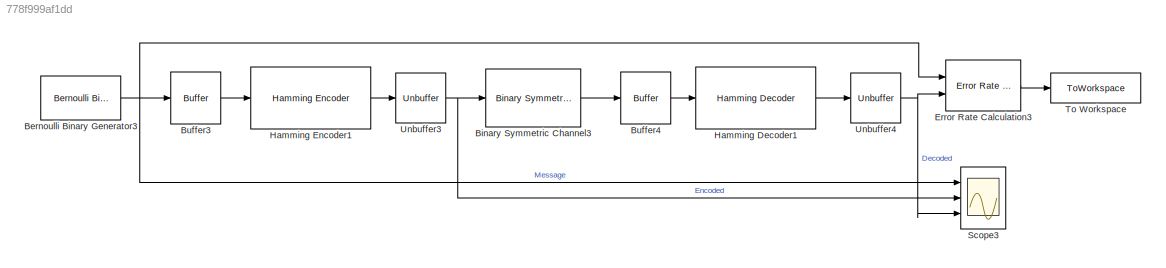
MODEL slx_778f999af1dd
KIND model
CONFIG AbsTol = auto
CONFIG EnableMultiTasking = off
CONFIG FixedStep = auto
CONFIG MaxStep = auto
CONFIG MinStep = auto
CONFIG RelTol = 1e-3
CONFIG SampleTimeConstraint = Unconstrained
CONFIG SolverName = VariableStepAuto
CONFIG StartTime = 0.0
CONFIG StopTime = 100000
BLOCK [Reference] Bernoulli Binary Generator3  REF=commrandsrc3/Bernoulli Binary
Generator
  Ports = [0, 1]
  SourceBlock = commrandsrc3/Bernoulli Binary\nGenerator
  SourceProductBaseCode = CM
  SourceType = Bernoulli Binary Generator
BLOCK [Reference] Binary Symmetric Channel3  REF=commchan3/Binary Symmetric
Channel
  Ports = [1, 1]
  SourceBlock = commchan3/Binary Symmetric\nChannel
  SourceProductBaseCode = CM
  SourceType = Binary Symmetric Channel
BLOCK [Buffer] Buffer3
  N = 2^M-1-M
  OutputFrames = off
BLOCK [Buffer] Buffer4
  N = 2^M-1
  OutputFrames = off
BLOCK [Reference] Error Rate Calculation3  REF=commsink2/Error Rate
Calculation
  Ports = [2, 1]
  SourceBlock = commsink2/Error Rate\nCalculation
  SourceProductBaseCode = CM
  SourceType = Error Rate Calculation
BLOCK [Reference] Hamming Decoder1  REF=commblkcod2/Hamming Decoder
  Ports = [1, 1]
  SourceBlock = commblkcod2/Hamming Decoder
  SourceProductBaseCode = CM
  SourceType = Hamming Decoder
BLOCK [Reference] Hamming Encoder1  REF=commblkcod2/Hamming Encoder
  Ports = [1, 1]
  SourceBlock = commblkcod2/Hamming Encoder
  SourceProductBaseCode = CM
  SourceType = Hamming Encoder
BLOCK [Scope] Scope3
  Floating = off
  NumInputPorts = 3
  Ports = [3]
  ScopeSpecificationString = Simulink.scopes.TimeScopeBlockCfg('CurrentConfiguration', extmgr.ConfigurationSet(extmgr.Configuration('Core','General UI',true),extmgr.Configuration('Core','Source UI',true),extmgr.Configuration('Sources','WiredSimulink',true),extmgr.Configuration('Visuals','Time Domain',true,'SerializedDisplays',{struct('MinYLimReal','-0.125','MaxYLimReal','1.125','YLabelReal','','MinYLimMag','0.00000','MaxYLimM...<+2763ch>
BLOCK [ToWorkspace] To Workspace
  FixptAsFi = on
  MaxDataPoints = 1
  Ports = [1]
  SampleTime = -1
  VariableName = ErrorStat
BLOCK [Unbuffer] Unbuffer3
  Ports = [1, 1]
BLOCK [Unbuffer] Unbuffer4
  Ports = [1, 1]
NET Bernoulli Binary Generator3:1 -> Buffer3:1, Error Rate Calculation3:1, Scope3:1
LINE Binary Symmetric Channel3:1 -> Buffer4:1
LINE Buffer3:1 -> Hamming Encoder1:1
LINE Buffer4:1 -> Hamming Decoder1:1
LINE Error Rate Calculation3:1 -> To Workspace:1
LINE Hamming Decoder1:1 -> Unbuffer4:1
LINE Hamming Encoder1:1 -> Unbuffer3:1
NET Unbuffer3:1 -> Binary Symmetric Channel3:1, Scope3:2
NET Unbuffer4:1 -> Error Rate Calculation3:2, Scope3:3
note: NET lines group one-source signal fan-out (src -> all destinations, sorted); 1:1 wires keep LINE
